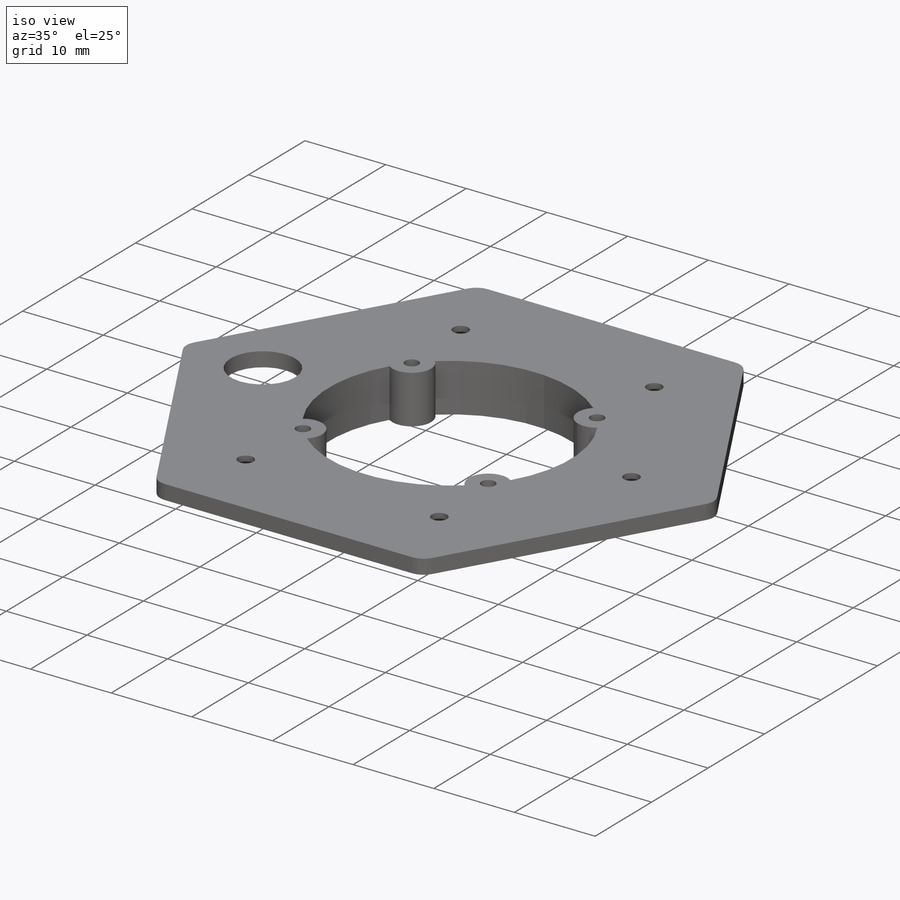
[diagram: iso view]
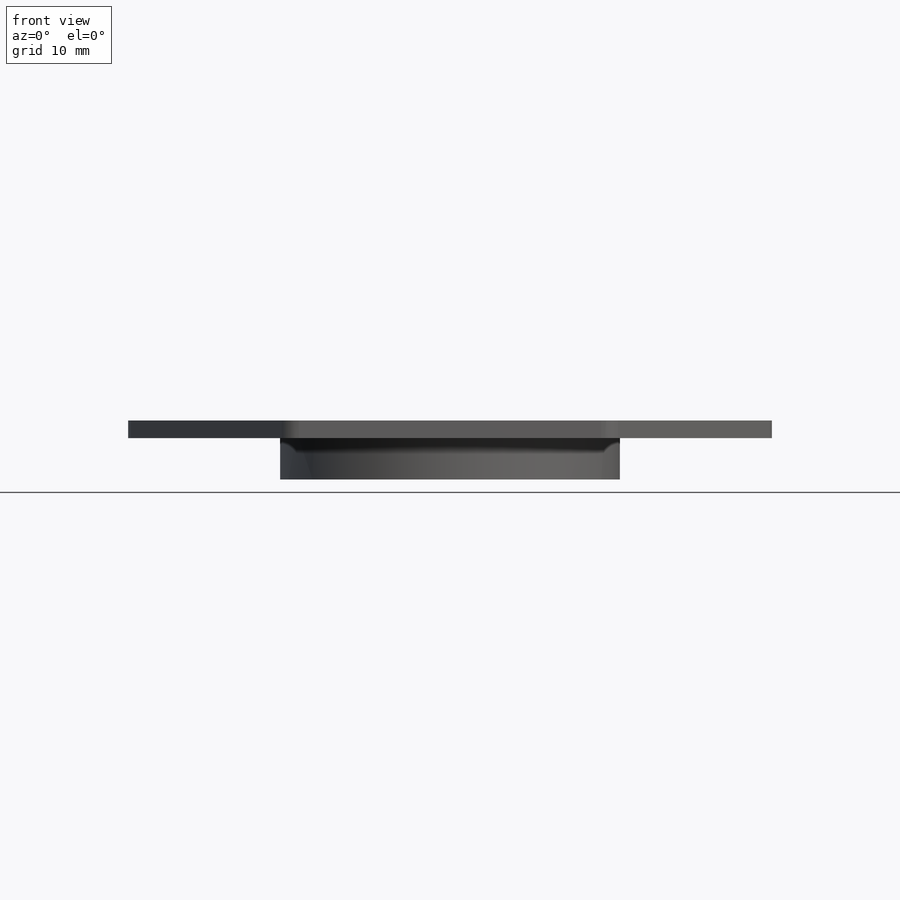
[diagram: front view]
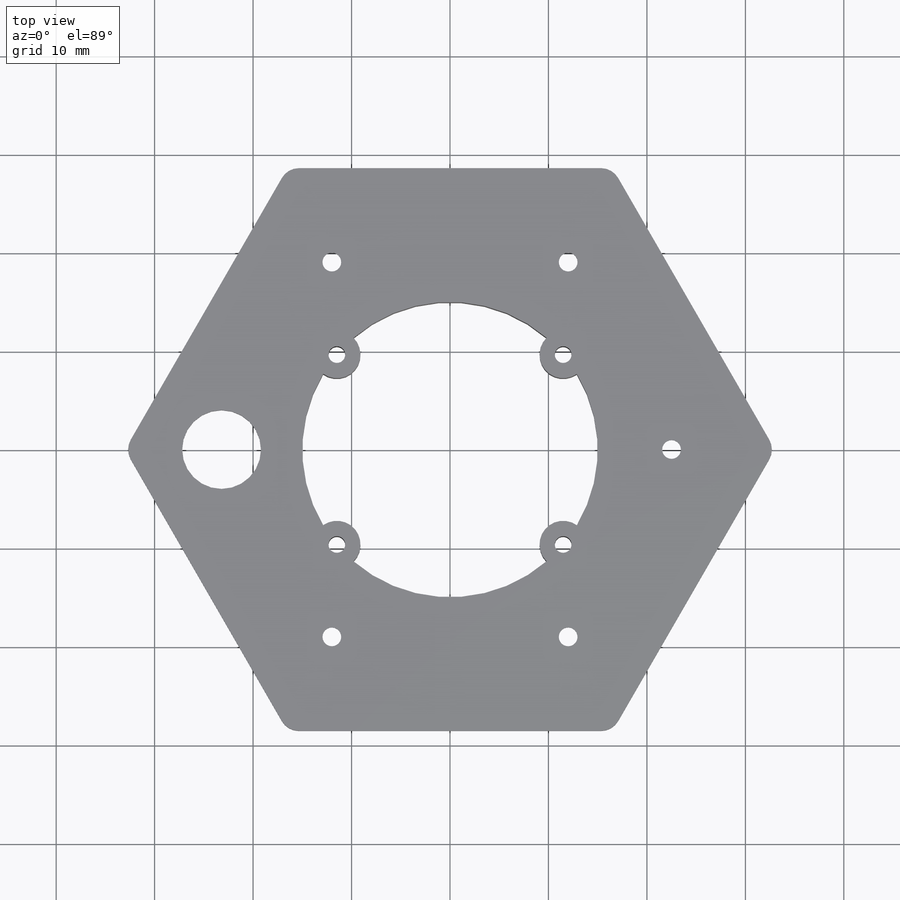
[diagram: top view]
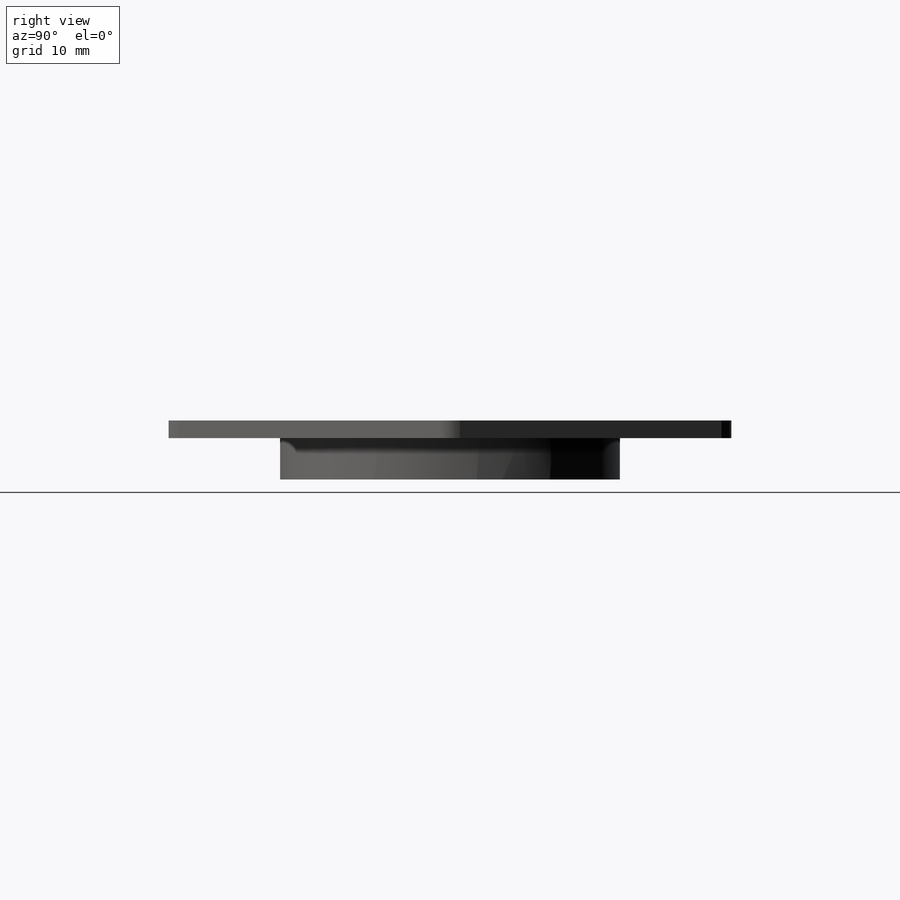
[diagram: right view]
SOLIDWORKS PART (.sldprt)
format: sldprt  version: not decoded by parser v0  size: 361,472 bytes
history: native  units: mm
features: sketch x9, plane x3, extrude x3, cut_extrude x3, material x1, fillet x1, hole x1 (+10 scaffold rows collapsed)
feature tree (31):
  scaffold x10  (default folders/planes/origin — collapsed)
  material  "材质 <未指定>"
  plane  "前视基准面"
  plane  "上视基准面"
  plane  "右视基准面"
  sketch  "草图5"  dims[D1=39.0mm]
  sketch  "草图1"  dims[c1.D3=45.0mm c1.D4=1.9mm c1.D1=33.0mm c1.D2=24.0mm c2.D3=~26.384655mm]
  extrude  "凸台-拉伸1"  Depth=1.8mm
  fillet  "圆角1"  Radius=2mm
  hole  "M2 平头机械螺钉的锥形沉头孔1"  [1 undecoded]
  sketch  "3D草图1"
  sketch  "草图3"  dims[hole-wizard template sketch: 54 standard entries collapsed; hole parameters kept: c17.通孔孔直径=1.8mm c17.通孔孔深度=1.8mm c17.近端锥形沉头孔直径=4.2mm c17.D4=~3.666174mm c17.近端锥形沉头孔角度=90.0deg]
  sketch  "草图4"  dims[D1=39.0mm D2=35.0mm D3=34.5mm D4=30.0mm]
  extrude  "凸台-拉伸2"  Depth=4.2mm
  cut_extrude  "切除-拉伸2"  [1 undecoded]
  sketch  "草图4<2>"  dims[D1=3.5mm]
  sketch  "草图7"  dims[c1.D1=1.7mm c1.D2=4.8mm c1.D4=7.0mm c1.D3=~11.629479mm c2.D3=40.0deg]
  extrude  "凸台-拉伸3"  [1 undecoded]
  cut_extrude  "切除-拉伸4"  [1 undecoded]
  sketch  "草图7<2>"
  sketch  "草图8"  dims[D1=8.0mm D2=23.2mm]
  cut_extrude  "切除-拉伸5"  Depth=10mm
decode coverage: 11 of 17 modeling features carry decoded parameters
note: ~ marks probable driven/reference dimensions
note: 4 parameter values undecoded
summary: no parameter record found for 4 features
note: suppression state not decoded; provenance and decode notes live in map.json
